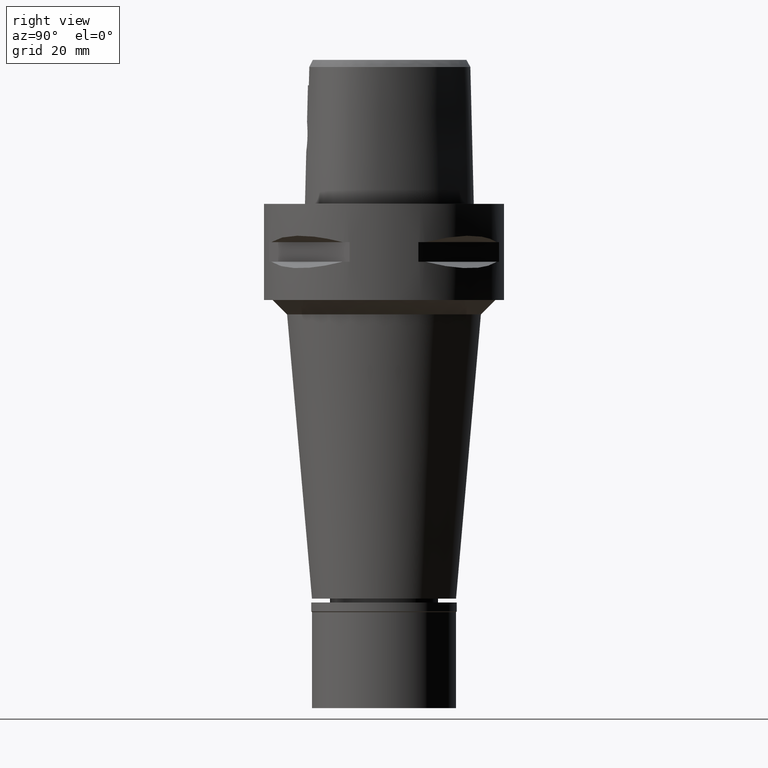
[diagram: clean part render]
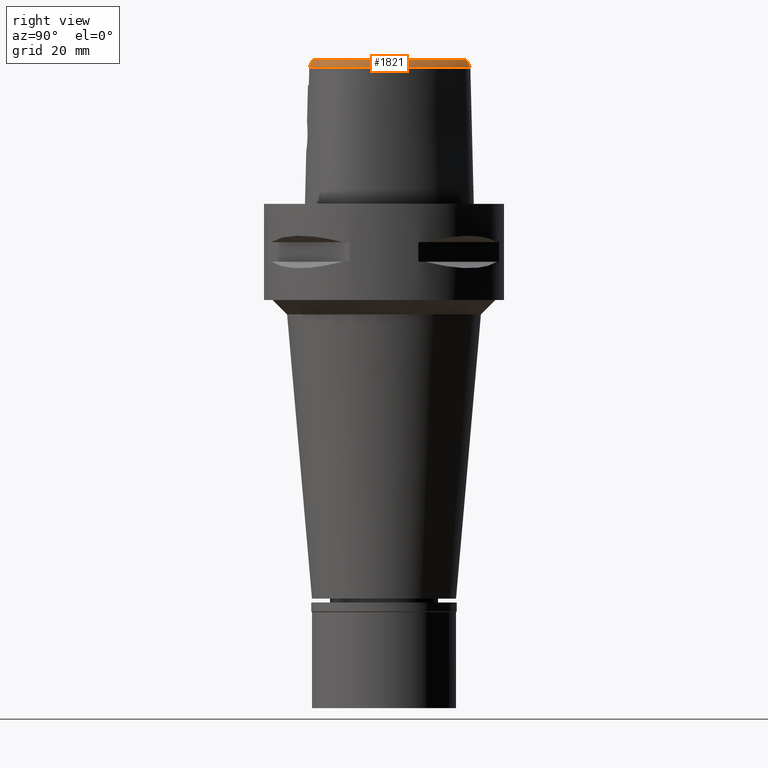
[diagram: same view with one face highlighted and labeled with its STEP entity id]
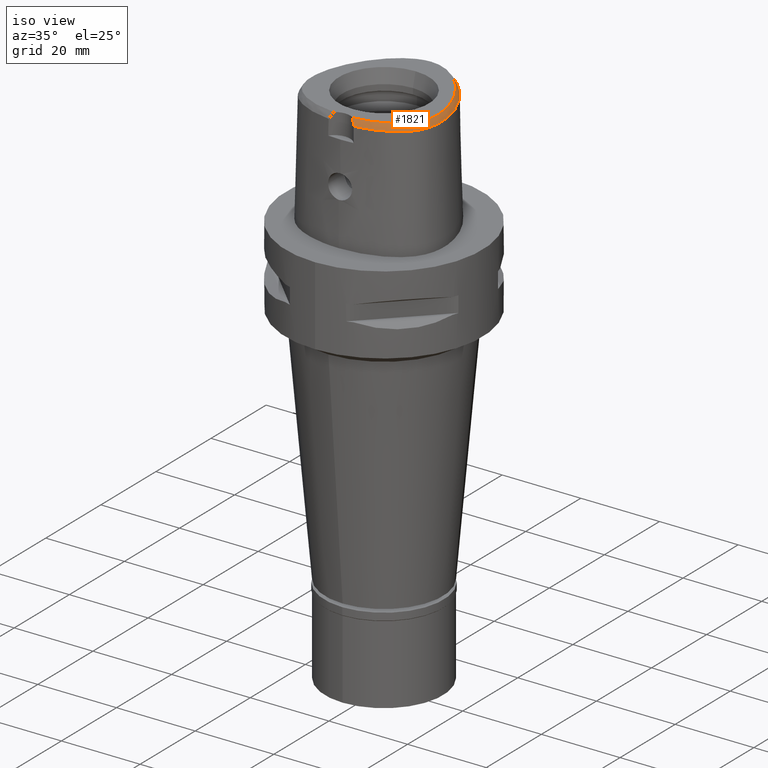
[diagram: same view with one face highlighted and labeled with its STEP entity id]
A machine part, right view. The second image highlights one B-rep face of the part: STEP entity #1821.
A second angle (iso view) of the same face is appended — the face is thin or edge-on in the first view.
In plain terms, the highlighted face is a freeform B-spline surface patch.
Its self-contained STEP definition (entity closure, byte-faithful):
#8 = CARTESIAN_POINT ( 'NONE',  ( 0.03829273897926999820, 17.07250974565999968, 30.15361985118000021 ) ) ;
#12 = CARTESIAN_POINT ( 'NONE',  ( 8.074596269521000735, -14.58215056251999897, 28.36704336540999805 ) ) ;
#17 = CARTESIAN_POINT ( 'NONE',  ( 7.523733068098778176, 15.26501041874221798, 28.52071728562186337 ) ) ;
#29 = CARTESIAN_POINT ( 'NONE',  ( 0.04269298065562000116, 18.07407459551999906, 28.36704040237999891 ) ) ;
#34 = CARTESIAN_POINT ( 'NONE',  ( 16.01658383235305649, -8.155509186612102113, 28.52071728562186337 ) ) ;
#56 = CARTESIAN_POINT ( 'NONE',  ( 1.288433840406999931, 17.98513789391999751, 28.36703984565999903 ) ) ;
#62 = CARTESIAN_POINT ( 'NONE',  ( 4.146164348675000610, -14.51264716611999894, 30.15361993093000237 ) ) ;
#66 = CARTESIAN_POINT ( 'NONE',  ( 16.47905536661404469, -6.962316254603452492, 28.52071728562186337 ) ) ;
#88 = CARTESIAN_POINT ( 'NONE',  ( 14.69095396796999964, -8.697738001636000860, 30.15361986478000134 ) ) ;
#112 = CARTESIAN_POINT ( 'NONE',  ( 13.58865818555999994, -11.07994916500000038, 28.96256661961000134 ) ) ;
#139 = CARTESIAN_POINT ( 'NONE',  ( 10.00264564467000028, -13.45200332874000004, 28.96256654724999891 ) ) ;
#164 = CARTESIAN_POINT ( 'NONE',  ( 16.27159029794999867, -6.690095881023000679, 28.96256664977999762 ) ) ;
#180 = CARTESIAN_POINT ( 'NONE',  ( 11.36765809995435106, -12.04801986072539322, 30.00000000000443379 ) ) ;
#185 = CARTESIAN_POINT ( 'NONE',  ( 16.13385724285000222, -8.081679272639998857, 28.36704050287999834 ) ) ;
#200 = CARTESIAN_POINT ( 'NONE',  ( 12.04928217776555499, -11.59002493207462514, 29.99999999999659295 ) ) ;
#207 = CARTESIAN_POINT ( 'NONE',  ( 10.21307750421000193, 11.18747849915999915, 30.15361992621000198 ) ) ;
#233 = CARTESIAN_POINT ( 'NONE',  ( 8.816245487877313991, -13.33426548781544341, 30.00000000000358824 ) ) ;
#240 = B_SPLINE_CURVE_WITH_KNOTS ( 'NONE', 3,
 ( #3615, #3139, #836, #3195 ),
 .UNSPECIFIED., .F., .F.,
 ( 4, 4 ),
 ( 0.0000000000000000000, 1.000000000000000000 ),
 .UNSPECIFIED. ) ;
#241 = CARTESIAN_POINT ( 'NONE',  ( 11.04997149070000084, 10.13969074653999947, 30.15361980688999921 ) ) ;
#257 = CARTESIAN_POINT ( 'NONE',  ( 14.44767169633531623, -9.224476417586206622, 30.00000000000325073 ) ) ;
#262 = CARTESIAN_POINT ( 'NONE',  ( 14.93884240354999982, 2.841254453171000005, 30.15361987669999877 ) ) ;
#279 = CARTESIAN_POINT ( 'NONE',  ( 3.772905803808435543, 16.33508552419539583, 30.00000000000495604 ) ) ;
#286 = CARTESIAN_POINT ( 'NONE',  ( 16.61894492805000212, -1.593427088619999932, 28.96256635696000004 ) ) ;
#313 = CARTESIAN_POINT ( 'NONE',  ( 15.09769666617999917, 4.331286804772998877, 28.96256659679999856 ) ) ;
#361 = CARTESIAN_POINT ( 'NONE',  ( 2.660620297192000105, 17.69691652207000132, 28.36703993573999938 ) ) ;
#366 = CARTESIAN_POINT ( 'NONE',  ( 2.133238677200000044, -15.41175674047999955, 28.96256729753000059 ) ) ;
#391 = CARTESIAN_POINT ( 'NONE',  ( 7.415406934757000634, 15.24502578981999967, 28.36703950204999813 ) ) ;
#395 = CARTESIAN_POINT ( 'NONE',  ( 3.198993527212000032, -15.31209627237000070, 28.96256711084999935 ) ) ;
#414 = CARTESIAN_POINT ( 'NONE',  ( 0.04122623343016999786, 17.74021964556999720, 28.96256688530999668 ) ) ;
#418 = CARTESIAN_POINT ( 'NONE',  ( 5.498906399425999680, -14.59729486414999933, 29.55809360039999945 ) ) ;
#440 = CARTESIAN_POINT ( 'NONE',  ( 2.432451611997000107, -15.38739613301000020, 28.96256729110000094 ) ) ;
#442 = CARTESIAN_POINT ( 'NONE',  ( 3.168920890822999770, -15.55911073834000113, 28.52071374672999582 ) ) ;
#466 = CARTESIAN_POINT ( 'NONE',  ( 13.36082485258000041, -10.83589156907000017, 29.55809325507000196 ) ) ;
#493 = CARTESIAN_POINT ( 'NONE',  ( 15.26275743287999909, -8.361380631612998826, 29.55809319548999881 ) ) ;
#516 = CARTESIAN_POINT ( 'NONE',  ( 14.96605349954000097, -8.208212624780999889, 30.15361991123000251 ) ) ;
#541 = CARTESIAN_POINT ( 'NONE',  ( 15.19450060900999944, -9.754098530245000731, 28.36703999949999755 ) ) ;
#561 = CARTESIAN_POINT ( 'NONE',  ( 15.51702143705311876, -7.148634146069255735, 29.99999999999807798 ) ) ;
#566 = CARTESIAN_POINT ( 'NONE',  ( 16.59322732226999975, -6.779682745314000059, 28.36704003163999843 ) ) ;
#583 = CARTESIAN_POINT ( 'NONE',  ( 9.755668685253413130, -12.92551394022960487, 29.99999999999576517 ) ) ;
#588 = CARTESIAN_POINT ( 'NONE',  ( 13.30771710062999880, 6.596507657484000475, 30.15361984243000038 ) ) ;
#601 = CARTESIAN_POINT ( 'NONE',  ( 10.60500548643838847, -12.49469941439629039, 30.00000000000041922 ) ) ;
#608 = CARTESIAN_POINT ( 'NONE',  ( 16.70696973355000026, -3.542334225978999829, 28.96256686301999750 ) ) ;
#632 = CARTESIAN_POINT ( 'NONE',  ( 7.783816186093613254, -13.71424622167329055, 29.99999999999985079 ) ) ;
#638 = CARTESIAN_POINT ( 'NONE',  ( 11.31634565947000048, 10.34083897090999926, 29.55809349560999877 ) ) ;
#656 = CARTESIAN_POINT ( 'NONE',  ( 15.99982784345714215, -5.151471542954656258, 29.99999999999363354 ) ) ;
#663 = CARTESIAN_POINT ( 'NONE',  ( 17.04077293784999725, -3.547427324846000207, 28.36704036729999956 ) ) ;
#680 = VERTEX_POINT ( 'NONE', #1536 ) ;
#686 = CARTESIAN_POINT ( 'NONE',  ( 14.23542756936999965, 5.481940382237999287, 29.55809356491000273 ) ) ;
#701 = CARTESIAN_POINT ( 'NONE',  ( 2.406543924163999648, -14.80491841401999942, 30.00000000000000000 ) ) ;
#713 = CARTESIAN_POINT ( 'NONE',  ( 0.6333398079783000290, 18.05338774167999816, 28.36703990808999976 ) ) ;
#739 = CARTESIAN_POINT ( 'NONE',  ( 4.911849081090999825, 16.81501773219000029, 28.36704528371999956 ) ) ;
#762 = CARTESIAN_POINT ( 'NONE',  ( 1.893770431822999978, 17.54090481157000170, 28.96256691932000038 ) ) ;
#766 = CARTESIAN_POINT ( 'NONE',  ( 6.635374954968000338, -13.97470328023000086, 30.15361950303000071 ) ) ;
#789 = CARTESIAN_POINT ( 'NONE',  ( 5.383607481564999908, 15.79993209983999947, 29.55809503456000087 ) ) ;
#794 = CARTESIAN_POINT ( 'NONE',  ( 9.719097109493999298, -12.84755303811000005, 30.15361990123000169 ) ) ;
#811 = CARTESIAN_POINT ( 'NONE',  ( -0.5225041125593999913, 18.05388067451999845, 28.36703978223999911 ) ) ;
#818 = CARTESIAN_POINT ( 'NONE',  ( 15.84228676733495256, 3.460033425849442068, 28.52071728562186337 ) ) ;
#836 = CARTESIAN_POINT ( 'NONE',  ( 2.674237079526943450, -15.00654560858230013, 29.59847386639597389 ) ) ;
#866 = CARTESIAN_POINT ( 'NONE',  ( 15.91455695856999775, -5.139395369444000217, 30.15361986919999993 ) ) ;
#869 = CARTESIAN_POINT ( 'NONE',  ( 8.702202469522539729, -14.36510984286100445, 28.52071728562186337 ) ) ;
#891 = CARTESIAN_POINT ( 'NONE',  ( 11.67627172026999993, -12.54095468905999944, 28.96256710911999832 ) ) ;
#901 = CARTESIAN_POINT ( 'NONE',  ( -3.094715185645000153E-11, 17.98202997909999823, 28.52071728569000086 ) ) ;
#913 = CARTESIAN_POINT ( 'NONE',  ( 11.49911564024000121, -12.25799115100000058, 29.55809346357999701 ) ) ;
#939 = CARTESIAN_POINT ( 'NONE',  ( 14.92213845358999968, -9.560949848247998872, 28.96256662936000126 ) ) ;
#954 = CARTESIAN_POINT ( 'NONE',  ( 14.55828366953405251, 4.114142377746066614, 30.00000000000204636 ) ) ;
#957 = EDGE_CURVE ( 'NONE', #680, #4300, #3241, .T. ) ;
#959 = CARTESIAN_POINT ( 'NONE',  ( 14.53264266294000073, -10.07281538320000003, 28.96256704513000102 ) ) ;
#975 = CARTESIAN_POINT ( 'NONE',  ( 16.08569500455069701, -4.373922630229509778, 29.99999999999538502 ) ) ;
#980 = CARTESIAN_POINT ( 'NONE',  ( 16.27771148723000039, 1.905284438587999896, 28.36704366148000034 ) ) ;
#1006 = CARTESIAN_POINT ( 'NONE',  ( 12.89819495673000027, 7.998107932144000287, 29.55809329633999738 ) ) ;
#1034 = CARTESIAN_POINT ( 'NONE',  ( 4.499552315896580446, 15.99769543814335471, 30.00000000000355627 ) ) ;
#1040 = CARTESIAN_POINT ( 'NONE',  ( 15.60524121365999939, 0.4732284123241000118, 30.15361950183000062 ) ) ;
#1064 = CARTESIAN_POINT ( 'NONE',  ( 16.47571318443000266, -0.5198468750482999612, 28.96256739823000004 ) ) ;
#1087 = CARTESIAN_POINT ( 'NONE',  ( 16.99839952402999899, -4.444578169778999666, 28.36704113150000239 ) ) ;
#1092 = EDGE_CURVE ( 'NONE', #4385, #680, #1951, .T. ) ;
#1117 = CARTESIAN_POINT ( 'NONE',  ( 7.214031648776000338, 14.97878479705999943, 28.96256631331999998 ) ) ;
#1142 = CARTESIAN_POINT ( 'NONE',  ( 3.739030726366000312, 16.25590661124999770, 30.15361978697999845 ) ) ;
#1146 = CARTESIAN_POINT ( 'NONE',  ( 6.723598313492000322, -14.29663611875000129, 29.55809436971000181 ) ) ;
#1165 = CARTESIAN_POINT ( 'NONE',  ( 3.272113944088999915, 17.15368569437000090, 28.96256605981999854 ) ) ;
#1170 = CARTESIAN_POINT ( 'NONE',  ( 9.032089389451000372, -13.87424967966999922, 28.96256671041000175 ) ) ;
#1194 = CARTESIAN_POINT ( 'NONE',  ( -0.4851168773169999837, 17.38770201586000042, 29.55809320042000010 ) ) ;
#1217 = CARTESIAN_POINT ( 'NONE',  ( 4.198916023021000754, -14.84224513320000050, 29.55809313881999856 ) ) ;
#1240 = CARTESIAN_POINT ( 'NONE',  ( 16.06557059065000104, -7.342053841249000179, 28.96256687891999704 ) ) ;
#1267 = CARTESIAN_POINT ( 'NONE',  ( 12.58255321154000050, -12.33410881720999974, 28.36704093719000142 ) ) ;
#1271 = CARTESIAN_POINT ( 'NONE',  ( 1.893775678554993291, 17.84807068954962972, 28.52071728562186337 ) ) ;
#1273 = ORIENTED_EDGE ( 'NONE', *, *, #1092, .T. ) ;
#1290 = CARTESIAN_POINT ( 'NONE',  ( 15.43579399391000173, -7.119993162503999606, 30.15361985211999851 ) ) ;
#1312 = CARTESIAN_POINT ( 'NONE',  ( 12.38807379903000161, -12.06274774999999977, 28.96256722508000081 ) ) ;
#1333 = CARTESIAN_POINT ( 'NONE',  ( 10.27891984618265298, 11.24296481357911404, 29.99999999999505818 ) ) ;
#1339 = CARTESIAN_POINT ( 'NONE',  ( 16.24512016238000101, -5.186210159869999892, 29.55809331637000170 ) ) ;
#1362 = CARTESIAN_POINT ( 'NONE',  ( 9.358132912821000460, 12.14677139895999858, 30.15361970659999713 ) ) ;
#1386 = CARTESIAN_POINT ( 'NONE',  ( 8.497719873075999075, 13.01181088210000070, 30.15361963137000245 ) ) ;
#1405 = CARTESIAN_POINT ( 'NONE',  ( 3.130495111450597001, -14.73481892791950543, 30.00000000000001776 ) ) ;
#1409 = CARTESIAN_POINT ( 'NONE',  ( 15.88653426312000150, 3.164758789328999899, 28.36704013104000310 ) ) ;
#1433 = CARTESIAN_POINT ( 'NONE',  ( 15.68929135224448501, 0.4919393172824306215, 30.00000000000252243 ) ) ;
#1440 = CARTESIAN_POINT ( 'NONE',  ( 16.28694415644000060, -1.628263527791000254, 29.55809314318999981 ) ) ;
#1467 = CARTESIAN_POINT ( 'NONE',  ( 14.84060907517999972, 5.763743526879999912, 28.36704112913999865 ) ) ;
#1489 = B_SPLINE_CURVE_WITH_KNOTS ( 'NONE', 3,
 ( #2722, #3853, #1271, #1950, #17, #4252, #2025, #818, #3468, #1553, #4603, #66, #34, #2344, #3143, #1650, #4302, #1606, #869, #3872, #2000, #442 ),
 .UNSPECIFIED., .F., .F.,
 ( 4, 1, 1, 1, 1, 1, 1, 1, 1, 1, 1, 1, 1, 1, 1, 1, 1, 1, 1, 4 ),
 ( 0.0000000000000000000, 0.04404152929334107652, 0.08808305858551931933, 0.1761661171698760686, 0.2642491757542327901, 0.3523322343385895117, 0.4404152929230518709, 0.5284983515074086480, 0.5725398807995869532, 0.6165814100917652585, 0.6606229393839436748, 0.6826437040300328274, 0.7046644686762276732, 0.7266852333222112437, 0.7487059979683002853, 0.7927475272605843948, 0.8367890565527628111, 0.8808305858448354231, 0.9689136444292978378, 1.000000000000000000 ),
 .UNSPECIFIED. ) ;
#1493 = CARTESIAN_POINT ( 'NONE',  ( 8.077863231109999376, 14.28671554293000057, 28.96256706073000231 ) ) ;
#1497 = CARTESIAN_POINT ( 'NONE',  ( 3.159672803738999836, -14.98071688823999992, 29.55809346430999796 ) ) ;
#1520 = CARTESIAN_POINT ( 'NONE',  ( 3.870351682439999941, 16.56285352720999882, 29.55809355292999996 ) ) ;
#1526 = CARTESIAN_POINT ( 'NONE',  ( 3.238314250685999873, -15.64347565648999883, 28.36704075737999986 ) ) ;
#1536 = CARTESIAN_POINT ( 'NONE',  ( -6.301949014258999711E-11, 17.15328888647999861, 30.00000000000000000 ) ) ;
#1545 = CARTESIAN_POINT ( 'NONE',  ( -0.4664232596956999766, 17.05461268652000228, 30.15361990951000237 ) ) ;
#1553 = CARTESIAN_POINT ( 'NONE',  ( 16.99625257117350330, -3.273868232427241676, 28.52071728562186337 ) ) ;
#1572 = CARTESIAN_POINT ( 'NONE',  ( 6.185590305766999641, 15.29957098851000019, 29.55809434152000037 ) ) ;
#1576 = FACE_OUTER_BOUND ( 'NONE', #3871, .T. ) ;
#1599 = CARTESIAN_POINT ( 'NONE',  ( 1.149539320437000134, 16.99313337148999992, 30.15361990355000188 ) ) ;
#1606 = CARTESIAN_POINT ( 'NONE',  ( 11.33338046474217542, -13.08225241901945068, 28.52071728562186337 ) ) ;
#1625 = CARTESIAN_POINT ( 'NONE',  ( 14.97609025388000070, -8.871497591701999141, 29.55809332912000187 ) ) ;
#1646 = CARTESIAN_POINT ( 'NONE',  ( 14.08988870307999974, -10.57899395039999924, 28.96256666514999978 ) ) ;
#1650 = CARTESIAN_POINT ( 'NONE',  ( 14.26907046692866565, -10.79012245165629835, 28.52071728562186337 ) ) ;
#1676 = CARTESIAN_POINT ( 'NONE',  ( 11.85342780029000131, -12.82391822712000007, 28.36704075465999608 ) ) ;
#1702 = CARTESIAN_POINT ( 'NONE',  ( 10.88292455253000135, -13.00555004452999874, 28.96256665938999930 ) ) ;
#1725 = CARTESIAN_POINT ( 'NONE',  ( 16.11602470272999810, -5.920354283145999652, 29.55809323977999981 ) ) ;
#1740 = CARTESIAN_POINT ( 'NONE',  ( 4.159771979224683669, -14.59766906204223247, 30.00000000000003908 ) ) ;
#1747 = CARTESIAN_POINT ( 'NONE',  ( 10.97881561765999869, 11.83277732138000005, 28.36703960470000041 ) ) ;
#1767 = CARTESIAN_POINT ( 'NONE',  ( 0.1912597614439882354, 17.15328888648454608, 30.00000000000263967 ) ) ;
#1773 = CARTESIAN_POINT ( 'NONE',  ( 9.844565711376999317, 12.60401288847999979, 28.96256786168999753 ) ) ;
#1789 = CARTESIAN_POINT ( 'NONE',  ( 14.08238499151751455, -9.704590128438827179, 29.99999999999970512 ) ) ;
#1795 = CARTESIAN_POINT ( 'NONE',  ( 14.53801832227000013, 5.622841954558999156, 28.96256734701999846 ) ) ;
#1810 = CARTESIAN_POINT ( 'NONE',  ( 8.557117433367597670, 13.07415149353518125, 30.00000000000477840 ) ) ;
#1817 = CARTESIAN_POINT ( 'NONE',  ( 16.02670478070000115, -2.631400928679999751, 30.15361987967999724 ) ) ;
#1821 = ADVANCED_FACE ( 'NONE', ( #1576 ), #4914, .F. ) ;
#1823 = ORIENTED_EDGE ( 'NONE', *, *, #4113, .F. ) ;
#1843 = CARTESIAN_POINT ( 'NONE',  ( 15.31379854252999984, 1.633849005622999728, 30.15361954456999882 ) ) ;
#1868 = CARTESIAN_POINT ( 'NONE',  ( 2.570246398364000040, 17.37550306872999784, 28.96256658885999613 ) ) ;
#1871 = CARTESIAN_POINT ( 'NONE',  ( 2.372941993995000054, -14.72275823976000098, 30.15361979108999790 ) ) ;
#1890 = CARTESIAN_POINT ( 'NONE',  ( 0.5865513355022999864, 17.38722245533999811, 29.55809323447999759 ) ) ;
#1896 = CARTESIAN_POINT ( 'NONE',  ( 2.081129139329999767, -14.74651665534999978, 30.15361979013999871 ) ) ;
#1920 = CARTESIAN_POINT ( 'NONE',  ( 0.6099455717402999522, 17.72030509850999991, 28.96256657129000089 ) ) ;
#1925 = ORIENTED_EDGE ( 'NONE', *, *, #957, .T. ) ;
#1943 = CARTESIAN_POINT ( 'NONE',  ( 1.825090705659999868, 17.21415816036999757, 29.55809338273000009 ) ) ;
#1947 = CARTESIAN_POINT ( 'NONE',  ( 6.900045030540000290, -14.94050179579000037, 28.36704410305999957 ) ) ;
#1949 = VERTEX_POINT ( 'NONE', #2558 ) ;
#1950 = CARTESIAN_POINT ( 'NONE',  ( 4.422474504765952830, 17.08283549832817982, 28.52071728562186337 ) ) ;
#1951 = LINE ( 'NONE', #2323, #3334 ) ;
#1963 = CARTESIAN_POINT ( 'NONE',  ( 9.188505990322999750, 13.73682431209000043, 28.36704273895999862 ) ) ;
#1996 = CARTESIAN_POINT ( 'NONE',  ( 10.14441991225000095, -13.75422847404999871, 28.36703987026000107 ) ) ;
#2000 = CARTESIAN_POINT ( 'NONE',  ( 3.738627708318999598, -15.49270856215482084, 28.52071728562186692 ) ) ;
#2022 = CARTESIAN_POINT ( 'NONE',  ( 16.44286909410000064, -5.988493112676000152, 28.96256658371999748 ) ) ;
#2025 = CARTESIAN_POINT ( 'NONE',  ( 13.75951381385227990, 7.944084035686747924, 28.52071728562186337 ) ) ;
#2045 = CARTESIAN_POINT ( 'NONE',  ( 13.60276569123999835, -10.12223978861999996, 30.15361988377999936 ) ) ;
#2073 = CARTESIAN_POINT ( 'NONE',  ( 15.55946136620999987, -8.514548638444001227, 28.96256647974999865 ) ) ;
#2092 = CARTESIAN_POINT ( 'NONE',  ( 13.19176257967602339, -10.65479018523067190, 30.00000000000106226 ) ) ;
#2098 = CARTESIAN_POINT ( 'NONE',  ( 15.85616529954000242, -8.667716645276000165, 28.36703976399999760 ) ) ;
#2114 = CARTESIAN_POINT ( 'NONE',  ( 5.446614459517848950, -14.35518554872922969, 29.99999999999900524 ) ) ;
#2118 = CARTESIAN_POINT ( 'NONE',  ( 12.68524246373000075, 9.573345868179000462, 28.36704140125000251 ) ) ;
#2136 = CARTESIAN_POINT ( 'NONE',  ( 6.048015628560739820, 15.09357031580012354, 30.00000000000314770 ) ) ;
#2140 = CARTESIAN_POINT ( 'NONE',  ( 17.02717039219000128, -2.585965686315000234, 28.36704009936999782 ) ) ;
#2158 = CARTESIAN_POINT ( 'NONE',  ( 14.76450668990880999, -8.742560395150521302, 30.00000000000274625 ) ) ;
#2165 = CARTESIAN_POINT ( 'NONE',  ( 15.95640717232999961, 1.814805960932999840, 28.96256895583999835 ) ) ;
#2182 = CARTESIAN_POINT ( 'NONE',  ( 6.863227115065921424, 14.51498137220334073, 29.99999999999718270 ) ) ;
#2188 = CARTESIAN_POINT ( 'NONE',  ( 14.19195888437999997, 7.066445347588999226, 28.36704049537999950 ) ) ;
#2215 = CARTESIAN_POINT ( 'NONE',  ( 13.60246436187999919, 6.753153554185999496, 29.55809339341000097 ) ) ;
#2244 = CARTESIAN_POINT ( 'NONE',  ( -0.3196752500175999989, 17.39641317963000233, 29.55809329869999758 ) ) ;
#2266 = CARTESIAN_POINT ( 'NONE',  ( 3.049561240507999926, 16.52412750990999868, 30.15361997341000233 ) ) ;
#2269 = CARTESIAN_POINT ( 'NONE',  ( 1.945369977427999997, -15.09082728411999952, 29.55809353821000229 ) ) ;
#2290 = CARTESIAN_POINT ( 'NONE',  ( 4.611126830695999601, 16.21887674755999953, 29.55809468921999894 ) ) ;
#2295 = CARTESIAN_POINT ( 'NONE',  ( 7.756461196291000171, -13.63259855821000066, 30.15361957242999935 ) ) ;
#2317 = CARTESIAN_POINT ( 'NONE',  ( 1.242135667083000161, 17.65446971976999890, 28.96256653161999495 ) ) ;
#2320 = CARTESIAN_POINT ( 'NONE',  ( 9.860871377081000588, -13.14977818342999960, 29.55809322424000030 ) ) ;
#2323 = CARTESIAN_POINT ( 'NONE',  ( -3.094715185645000153E-11, 17.98202997909999823, 28.52071728569000086 ) ) ;
#2336 = CARTESIAN_POINT ( 'NONE',  ( 0.5631570992643000206, 17.05413981216999986, 30.15361989767999873 ) ) ;
#2344 = CARTESIAN_POINT ( 'NONE',  ( 15.58740368722602021, -8.999391713747405319, 28.52071728562186337 ) ) ;
#2362 = CARTESIAN_POINT ( 'NONE',  ( 4.251667697365999921, -15.17184310029000116, 28.96256634671999919 ) ) ;
#2388 = CARTESIAN_POINT ( 'NONE',  ( 13.23487809058000053, -11.83335342444000027, 28.36703997597999916 ) ) ;
#2414 = CARTESIAN_POINT ( 'NONE',  ( 14.33345020900999955, -10.80737103128999976, 28.36704005584000043 ) ) ;
#2438 = CARTESIAN_POINT ( 'NONE',  ( 14.01571224365999946, -9.650064484293999101, 30.15361982751000269 ) ) ;
#2462 = CARTESIAN_POINT ( 'NONE',  ( -6.301949014258999711E-11, 17.15328888647999861, 30.00000000000000000 ) ) ;
#2469 = CARTESIAN_POINT ( 'NONE',  ( 15.75068229228000050, -7.231023501876000736, 29.55809336552000133 ) ) ;
#2487 = CARTESIAN_POINT ( 'NONE',  ( 15.04259016984626740, -8.247723288183502532, 29.99999999999995026 ) ) ;
#2491 = CARTESIAN_POINT ( 'NONE',  ( 16.33268836591999928, -4.393043220563000339, 29.55809356554999923 ) ) ;
#2507 = CARTESIAN_POINT ( 'NONE',  ( 12.65514534657125267, -11.12483370674451422, 30.00000000000234834 ) ) ;
#2512 = CARTESIAN_POINT ( 'NONE',  ( 13.18428203037999857, 8.170061246699001245, 28.96256671649000225 ) ) ;
#2530 = CARTESIAN_POINT ( 'NONE',  ( 11.11868440496376031, 10.19157821280299459, 29.99999999999320366 ) ) ;
#2537 = CARTESIAN_POINT ( 'NONE',  ( 16.03936332497000095, -3.532148028246000049, 30.15361985447999871 ) ) ;
#2557 = CARTESIAN_POINT ( 'NONE',  ( 5.258649622039831328, 15.58603480842768541, 29.99999999999665690 ) ) ;
#2558 = CARTESIAN_POINT ( 'NONE',  ( 3.168920890822999770, -15.55911073834000113, 28.52071374672999582 ) ) ;
#2562 = CARTESIAN_POINT ( 'NONE',  ( 16.14629499794000012, -0.5738484262235999944, 29.55809358671999831 ) ) ;
#2585 = CARTESIAN_POINT ( 'NONE',  ( 15.25473969007999919, 2.949089231889999940, 29.55809329481999725 ) ) ;
#2614 = CARTESIAN_POINT ( 'NONE',  ( 6.000190590602000107, 15.02195837243999854, 30.15361951283999886 ) ) ;
#2639 = CARTESIAN_POINT ( 'NONE',  ( 4.460765705497999889, 15.92080625523999871, 30.15361939197000041 ) ) ;
#2664 = CARTESIAN_POINT ( 'NONE',  ( 2.479872499535999975, 17.05408961539000146, 29.55809324196999910 ) ) ;
#2667 = CARTESIAN_POINT ( 'NONE',  ( 1.969406724389000107, -15.42359309477000018, 28.96256728431999861 ) ) ;
#2688 = CARTESIAN_POINT ( 'NONE',  ( 7.645193976424000226, 13.77826679115000097, 30.15361982519999984 ) ) ;
#2692 = CARTESIAN_POINT ( 'NONE',  ( 9.155992085197999231, -14.18422136080000051, 28.36704012706999833 ) ) ;
#2716 = CARTESIAN_POINT ( 'NONE',  ( 1.195837493759999814, 17.32380154562999763, 29.55809321758999886 ) ) ;
#2722 = CARTESIAN_POINT ( 'NONE',  ( -3.094715185645000153E-11, 17.98202997909999823, 28.52071728569000086 ) ) ;
#2764 = CARTESIAN_POINT ( 'NONE',  ( 13.13299151960000088, -10.59183397314000175, 30.15361989052000169 ) ) ;
#2794 = CARTESIAN_POINT ( 'NONE',  ( 16.90624656998999953, -5.279839740723000219, 28.36704021070999815 ) ) ;
#2816 = CARTESIAN_POINT ( 'NONE',  ( 10.56385210029000099, -12.41905425070999947, 30.15361988463000031 ) ) ;
#2837 = CARTESIAN_POINT ( 'NONE',  ( 14.37741414275999929, -9.174652484254000484, 30.15361988908000157 ) ) ;
#2863 = CARTESIAN_POINT ( 'NONE',  ( 15.99983278685999899, -4.367275745955000232, 30.15361978257999809 ) ) ;
#2882 = CARTESIAN_POINT ( 'NONE',  ( 12.68590586676745957, 7.870511070825999766, 30.00000000000601474 ) ) ;
#2887 = CARTESIAN_POINT ( 'NONE',  ( 13.89721162312999958, 6.909799450887000205, 28.96256694440000246 ) ) ;
#2903 = CARTESIAN_POINT ( 'NONE',  ( 3.078265684544157832, 16.60532678263340145, 29.99999999999936406 ) ) ;
#2908 = CARTESIAN_POINT ( 'NONE',  ( 16.95094569966000009, -1.558590649448999832, 28.36703957074000115 ) ) ;
#2930 = CARTESIAN_POINT ( 'NONE',  ( 2.406543924163999648, -14.80491841401999942, 30.00000000000000000 ) ) ;
#2935 = CARTESIAN_POINT ( 'NONE',  ( 11.84909399700999977, 10.74313541963000063, 28.36704087305999877 ) ) ;
#2962 = CARTESIAN_POINT ( 'NONE',  ( 16.80513137092000164, -0.4658453238731000146, 28.36704120973000087 ) ) ;
#2987 = CARTESIAN_POINT ( 'NONE',  ( 16.58273369991999857, 0.6908338715863998614, 28.36704411590999797 ) ) ;
#3010 = CARTESIAN_POINT ( 'NONE',  ( 4.132993594588000086, 17.17674735914000195, 28.36704108482999942 ) ) ;
#3039 = CARTESIAN_POINT ( 'NONE',  ( 6.370990020930999975, 15.57718360458000006, 28.96256917020999921 ) ) ;
#3043 = CARTESIAN_POINT ( 'NONE',  ( 2.402696802996000081, -15.05507718638000014, 29.55809354109999987 ) ) ;
#3063 = CARTESIAN_POINT ( 'NONE',  ( 8.958243951240000058, 13.49515316875999993, 28.96256836976000315 ) ) ;
#3068 = CARTESIAN_POINT ( 'NONE',  ( 8.784283997958000967, -13.25430631742000109, 30.15361987707999702 ) ) ;
#3078 = EDGE_CURVE ( 'NONE', #1949, #4300, #240, .T. ) ;
#3089 = CARTESIAN_POINT ( 'NONE',  ( 1.756410979495999891, 16.88741150917000411, 30.15361984613999979 ) ) ;
#3114 = CARTESIAN_POINT ( 'NONE',  ( 4.001672638514000013, 16.86980044318000083, 28.96256731888000147 ) ) ;
#3117 = CARTESIAN_POINT ( 'NONE',  ( 2.159293446134999961, -15.74437678305000077, 28.36704105123000019 ) ) ;
#3139 = CARTESIAN_POINT ( 'NONE',  ( 2.935843368165670153, -15.25651436809868500, 29.10537844863930701 ) ) ;
#3140 = CARTESIAN_POINT ( 'NONE',  ( 15.54636282569999928, -9.219016771833999258, 28.36704025779999938 ) ) ;
#3143 = CARTESIAN_POINT ( 'NONE',  ( 15.07117004567531815, -9.793013887526639039, 28.52071728562186337 ) ) ;
#3164 = CARTESIAN_POINT ( 'NONE',  ( 16.57568336618000160, -5.233024950297000544, 28.96256676353999993 ) ) ;
#3195 = CARTESIAN_POINT ( 'NONE',  ( 2.406543924163999648, -14.80491841401999942, 30.00000000000000000 ) ) ;
#3196 = CARTESIAN_POINT ( 'NONE',  ( 12.81203088408999946, -11.31657118905999937, 29.55809325286000089 ) ) ;
#3217 = CARTESIAN_POINT ( 'NONE',  ( 11.04246077865000153, -13.29879794144000016, 28.36704004677000057 ) ) ;
#3240 = CARTESIAN_POINT ( 'NONE',  ( 13.81649151854000124, -11.32400676093999969, 28.36703998414999717 ) ) ;
#3241 = B_SPLINE_CURVE_WITH_KNOTS ( 'NONE', 3,
 ( #2462, #1767, #3329, #3708, #4864, #4791, #2903, #279, #1034, #2557, #2136, #2182, #4766, #1810, #3685, #1333, #2530, #3657, #2882, #4414, #4396, #954, #4370, #4015, #1433, #4463, #4060, #4086, #3993, #975, #656, #3283, #4034, #561, #4814, #2487, #2158, #257, #1789, #4438, #2092, #2507, #200, #180, #601, #583, #233, #632, #3304, #2114, #1740, #1405, #4835, #2930 ),
 .UNSPECIFIED., .F., .F.,
 ( 4, 1, 1, 1, 1, 1, 1, 1, 1, 1, 1, 1, 1, 1, 1, 1, 1, 1, 1, 1, 1, 1, 1, 1, 1, 1, 1, 1, 1, 1, 1, 1, 1, 1, 1, 1, 1, 1, 1, 1, 1, 1, 1, 1, 1, 1, 1, 1, 1, 1, 1, 4 ),
 ( 0.0000000000000000000, 0.01988587058640001182, 0.03977174117009996124, 0.05965761175399997285, 0.07954348233780006439, 0.09942935292160004490, 0.1193152235055000565, 0.1392010940893000370, 0.1590869646731999376, 0.1789728352568999981, 0.1988587058408000097, 0.2187445764247000213, 0.2386304470083999707, 0.2585163175922999823, 0.2784021881761000738, 0.2982880587598999433, 0.3181739293438000660, 0.3380597999276000465, 0.3579456705113999160, 0.3778315410952000075, 0.3977174116791000191, 0.4176032822630000307, 0.4374891528466999802, 0.4573750234305999918, 0.4772608940143999723, 0.4971467645981999528, 0.5170326351820999644, 0.5369185057659000559, 0.5568043763497000365, 0.5766902469335999371, 0.5965761175174000286, 0.6164619881012000091, 0.6363478586849999896, 0.6562337292689000012, 0.6761195998528000128, 0.6960054704364999623, 0.7158913410203999739, 0.7357772116042000654, 0.7556630821880000459, 0.7755489527718999465, 0.7954348233557000381, 0.8153206939395000186, 0.8352065645232999991, 0.8550924351072000107, 0.8749783056909999912, 0.8948641762747999717, 0.9147500468586799993, 0.9346359174424899718, 0.9545217880263200394, 0.9744076586101599879, 0.9942935291939859477, 1.000000000000000000 ),
 .UNSPECIFIED. ) ;
#3266 = CARTESIAN_POINT ( 'NONE',  ( 12.13195561865000016, 9.199808746281000538, 29.55809363855000171 ) ) ;
#3283 = CARTESIAN_POINT ( 'NONE',  ( 15.87349190488088269, -5.869792298898524052, 29.99999999999715783 ) ) ;
#3288 = CARTESIAN_POINT ( 'NONE',  ( 10.08778211066000097, 12.83263363324000039, 28.36704193923000261 ) ) ;
#3304 = CARTESIAN_POINT ( 'NONE',  ( 6.658132732489419503, -14.05774790739508440, 29.99999999999528200 ) ) ;
#3308 = CARTESIAN_POINT ( 'NONE',  ( 8.727981912157998678, 13.25348202543000120, 29.55809400056000058 ) ) ;
#3329 = CARTESIAN_POINT ( 'NONE',  ( 0.5691917915717104037, 17.14006060249568719, 30.00000000000319034 ) ) ;
#3334 = VECTOR ( 'NONE', #4230, 1000.000000000000000 ) ;
#3336 = CARTESIAN_POINT ( 'NONE',  ( 16.69368185503000035, -2.601110767103000043, 28.96256669281000029 ) ) ;
#3367 = CARTESIAN_POINT ( 'NONE',  ( 14.47840907994000048, 4.081988310085000293, 30.15361989390000019 ) ) ;
#3394 = CARTESIAN_POINT ( 'NONE',  ( 4.304419371712000064, -15.50144106736999916, 28.36703955460999893 ) ) ;
#3413 = CARTESIAN_POINT ( 'NONE',  ( 0.03975948620472000150, 17.40636469560999799, 29.55809336824000155 ) ) ;
#3418 = CARTESIAN_POINT ( 'NONE',  ( 2.107183908265000127, -15.07913669791999922, 29.55809354384000187 ) ) ;
#3439 = CARTESIAN_POINT ( 'NONE',  ( -0.3447355757059999970, 18.06332007809999851, 28.36704014540999808 ) ) ;
#3445 = CARTESIAN_POINT ( 'NONE',  ( 7.862506220701001247, -13.94911589298000010, 29.55809417009000128 ) ) ;
#3462 = CARTESIAN_POINT ( 'NONE',  ( 3.383390295880000398, 17.46846478659999846, 28.36703910303000242 ) ) ;
#3468 = CARTESIAN_POINT ( 'NONE',  ( 16.79165444019831099, -0.3537785292840804341, 28.52071728562186337 ) ) ;
#3485 = CARTESIAN_POINT ( 'NONE',  ( 5.552004399037000937, 16.08818643348000421, 28.96257079721999972 ) ) ;
#3518 = CARTESIAN_POINT ( 'NONE',  ( 11.32195956021000072, -11.97502761293999995, 30.15361981803999925 ) ) ;
#3542 = CARTESIAN_POINT ( 'NONE',  ( 11.99911497401999938, -11.52002561557999982, 30.15361980085999960 ) ) ;
#3568 = CARTESIAN_POINT ( 'NONE',  ( 15.62831624931000007, -6.510922152440999255, 30.15361988605999954 ) ) ;
#3594 = CARTESIAN_POINT ( 'NONE',  ( 15.94995327362999937, -6.600509016732000411, 29.55809326792000036 ) ) ;
#3615 = CARTESIAN_POINT ( 'NONE',  ( 3.168920890822999770, -15.55911073834000113, 28.52071374672999582 ) ) ;
#3616 = CARTESIAN_POINT ( 'NONE',  ( 15.21415252737000046, -7.684797480557000071, 30.15361984171999765 ) ) ;
#3636 = CARTESIAN_POINT ( 'NONE',  ( 11.58271982824000013, 10.54198719526999817, 28.96256718433999922 ) ) ;
#3657 = CARTESIAN_POINT ( 'NONE',  ( 11.92667412982301833, 9.061218325782743221, 29.99999999999312905 ) ) ;
#3664 = CARTESIAN_POINT ( 'NONE',  ( 15.81687681145000113, -0.6278499773987999966, 30.15361977521999748 ) ) ;
#3685 = CARTESIAN_POINT ( 'NONE',  ( 9.420872132874885452, 12.20574557692233597, 30.00000000000179767 ) ) ;
#3691 = CARTESIAN_POINT ( 'NONE',  ( 15.63510285743000061, 1.724327483278000006, 29.55809425020999726 ) ) ;
#3708 = CARTESIAN_POINT ( 'NONE',  ( 1.161482229273851807, 17.07843133414289483, 30.00000000000169109 ) ) ;
#3714 = CARTESIAN_POINT ( 'NONE',  ( 9.601349312098999889, 12.37539214372000096, 29.55809378413999866 ) ) ;
#3742 = CARTESIAN_POINT ( 'NONE',  ( 12.40859904118999779, 9.386577307230000500, 28.96256751989999856 ) ) ;
#3792 = CARTESIAN_POINT ( 'NONE',  ( 3.160837592297999876, 16.83890660213999979, 29.55809301662000266 ) ) ;
#3795 = CARTESIAN_POINT ( 'NONE',  ( 1.993443471349999996, -15.75635890542999995, 28.36704103042999847 ) ) ;
#3820 = CARTESIAN_POINT ( 'NONE',  ( 7.012656362795000931, 14.71254380429999919, 29.55809312459999916 ) ) ;
#3826 = CARTESIAN_POINT ( 'NONE',  ( 7.968551245110999659, -14.26563322775000131, 28.96256876774999967 ) ) ;
#3847 = CARTESIAN_POINT ( 'NONE',  ( 2.389498600708000353, 16.73267616205000152, 30.15361989507999851 ) ) ;
#3853 = CARTESIAN_POINT ( 'NONE',  ( 0.6295828025428494845, 17.98202997637701017, 28.52071728562186337 ) ) ;
#3869 = CARTESIAN_POINT ( 'NONE',  ( 1.921333230467999975, -14.75806147345999975, 30.15361979208999799 ) ) ;
#3871 = EDGE_LOOP ( 'NONE', ( #1823, #1273, #1925, #4664 ) ) ;
#3872 = CARTESIAN_POINT ( 'NONE',  ( 5.902447799197765299, -15.16907841529602763, 28.52071728562186337 ) ) ;
#3896 = CARTESIAN_POINT ( 'NONE',  ( 3.120352080264999994, -14.64933750412000002, 30.15361981778000100 ) ) ;
#3924 = CARTESIAN_POINT ( 'NONE',  ( 12.60060728085000115, -11.05818007138000070, 30.15361989128999909 ) ) ;
#3947 = CARTESIAN_POINT ( 'NONE',  ( 15.26122653978999999, -9.045257181768000976, 28.96256679346000240 ) ) ;
#3972 = CARTESIAN_POINT ( 'NONE',  ( 14.79110787257000048, -10.28419083264999934, 28.36704065395000285 ) ) ;
#3993 = CARTESIAN_POINT ( 'NONE',  ( 16.12546998862759651, -3.533461825553732005, 30.00000000000294165 ) ) ;
#3999 = CARTESIAN_POINT ( 'NONE',  ( 16.38045888902000158, -7.453084180621999622, 28.36704039231999985 ) ) ;
#4015 = CARTESIAN_POINT ( 'NONE',  ( 15.39668103802213395, 1.657188505494671116, 29.99999999999377565 ) ) ;
#4020 = CARTESIAN_POINT ( 'NONE',  ( 14.78805287305999983, 4.206637557428999585, 29.55809324535000115 ) ) ;
#4034 = CARTESIAN_POINT ( 'NONE',  ( 15.71128456931716499, -6.534031654963753155, 30.00000000000649791 ) ) ;
#4038 = CARTESIAN_POINT ( 'NONE',  ( 10.72356957984000125, 11.61767771397000004, 28.96256637854000004 ) ) ;
#4060 = CARTESIAN_POINT ( 'NONE',  ( 16.04058509949204847, -1.654113685487843322, 29.99999999999898392 ) ) ;
#4067 = CARTESIAN_POINT ( 'NONE',  ( 16.25690287117000210, 0.6182987184990000884, 28.96256924455000004 ) ) ;
#4086 = CARTESIAN_POINT ( 'NONE',  ( 16.11273027396860158, -2.627494158580952810, 29.99999999999823075 ) ) ;
#4091 = CARTESIAN_POINT ( 'NONE',  ( 15.93107204240999941, 0.5457635654115999824, 29.55809437318999855 ) ) ;
#4113 = EDGE_CURVE ( 'NONE', #4385, #1949, #1489, .T. ) ;
#4114 = CARTESIAN_POINT ( 'NONE',  ( 13.93283681645999827, 5.341038809917999508, 30.15361978279999633 ) ) ;
#4145 = CARTESIAN_POINT ( 'NONE',  ( 6.811281076813000546, 14.44630281154000073, 30.15361993587000100 ) ) ;
#4170 = CARTESIAN_POINT ( 'NONE',  ( 7.861528603767001577, 14.03249116704000166, 29.55809344296999797 ) ) ;
#4191 = CARTESIAN_POINT ( 'NONE',  ( 6.556389736095000309, 15.85479622065000171, 28.36704399889999806 ) ) ;
#4195 = CARTESIAN_POINT ( 'NONE',  ( 6.811821672016000306, -14.61856895727000172, 28.96256923638999936 ) ) ;
#4219 = CARTESIAN_POINT ( 'NONE',  ( -0.3322054128617999980, 17.72986662886999909, 28.96256672206000005 ) ) ;
#4230 = DIRECTION ( 'NONE',  ( -1.891493992830029568E-11, -0.4887572537803078765, 0.8724198226067148010 ) ) ;
#4246 = CARTESIAN_POINT ( 'NONE',  ( -0.5038104949382000708, 17.72079134519000121, 28.96256649133000138 ) ) ;
#4252 = CARTESIAN_POINT ( 'NONE',  ( 10.91764517733003359, 11.98972036053594081, 28.52071728562186337 ) ) ;
#4299 = CARTESIAN_POINT ( 'NONE',  ( 13.84632719716000082, -10.35061686951000048, 29.55809327445999912 ) ) ;
#4300 = VERTEX_POINT ( 'NONE', #701 ) ;
#4302 = CARTESIAN_POINT ( 'NONE',  ( 13.06460231238480851, -11.91950040983220305, 28.52071728562186337 ) ) ;
#4327 = CARTESIAN_POINT ( 'NONE',  ( 15.78918031136000089, -5.852215453617000129, 30.15361989583000124 ) ) ;
#4351 = CARTESIAN_POINT ( 'NONE',  ( 13.02345448734000044, -11.57496230674999893, 28.96256661441999825 ) ) ;
#4370 = CARTESIAN_POINT ( 'NONE',  ( 15.02033012161840020, 2.869071121502582145, 29.99999999999977618 ) ) ;
#4377 = CARTESIAN_POINT ( 'NONE',  ( 14.64977629816999816, -9.367801166250998790, 29.55809325922000141 ) ) ;
#4385 = VERTEX_POINT ( 'NONE', #901 ) ;
#4396 = CARTESIAN_POINT ( 'NONE',  ( 14.01089202938723055, 5.377385268372155025, 29.99999999999354117 ) ) ;
#4401 = CARTESIAN_POINT ( 'NONE',  ( 15.52072076587000105, -7.817091411251999133, 29.55809339544000025 ) ) ;
#4414 = CARTESIAN_POINT ( 'NONE',  ( 13.38374903490226586, 6.636915464740803294, 30.00000000000228795 ) ) ;
#4420 = CARTESIAN_POINT ( 'NONE',  ( 16.66554394497000047, -4.418810695171000447, 28.96256734852000037 ) ) ;
#4438 = CARTESIAN_POINT ( 'NONE',  ( 13.66559393375132991, -10.18115111193436029, 30.00000000000189360 ) ) ;
#4444 = CARTESIAN_POINT ( 'NONE',  ( 12.61210788307000108, 7.826154617590000306, 30.15361987617999873 ) ) ;
#4463 = CARTESIAN_POINT ( 'NONE',  ( 15.90185233182321234, -0.6139199331563485185, 29.99999999999507949 ) ) ;
#4472 = CARTESIAN_POINT ( 'NONE',  ( 10.46832354202999937, 11.40257810656000004, 29.55809315237999968 ) ) ;
#4498 = CARTESIAN_POINT ( 'NONE',  ( 16.36019331786999942, -2.616255847891999942, 29.55809328624000187 ) ) ;
#4521 = CARTESIAN_POINT ( 'NONE',  ( 15.57063697659999946, 3.056924010609999964, 28.96256671293000196 ) ) ;
#4549 = CARTESIAN_POINT ( 'NONE',  ( -0.3071450871733999999, 17.06295973039999936, 30.15361987534999955 ) ) ;
#4554 = CARTESIAN_POINT ( 'NONE',  ( 5.639846737595000548, -15.24984225192999965, 28.36704126025999528 ) ) ;
#4574 = CARTESIAN_POINT ( 'NONE',  ( 5.215210564094000745, 15.51167776620999916, 30.15361927190999580 ) ) ;
#4578 = CARTESIAN_POINT ( 'NONE',  ( 5.428436230342000179, -14.27102117026000094, 30.15361977047000153 ) ) ;
#4596 = CARTESIAN_POINT ( 'NONE',  ( 1.962450157986999955, 17.86765146277000227, 28.36704045591000067 ) ) ;
#4599 = CARTESIAN_POINT ( 'NONE',  ( 8.908186693704999826, -13.56427799854999883, 29.55809329373999716 ) ) ;
#4603 = CARTESIAN_POINT ( 'NONE',  ( 16.85489147434762458, -5.354527548487159727, 28.52071728562186337 ) ) ;
#4621 = CARTESIAN_POINT ( 'NONE',  ( 8.294197858453001615, 14.54093991881999948, 28.36704067848999955 ) ) ;
#4664 = ORIENTED_EDGE ( 'NONE', *, *, #3078, .F. ) ;
#4673 = CARTESIAN_POINT ( 'NONE',  ( 15.82728900435999897, -7.949385341946000771, 28.96256694915999930 ) ) ;
#4700 = CARTESIAN_POINT ( 'NONE',  ( 10.72338832640999939, -12.71230214761999910, 29.55809327200999803 ) ) ;
#4725 = CARTESIAN_POINT ( 'NONE',  ( 14.27417745329999832, -9.861439933746998676, 29.55809343631999653 ) ) ;
#4748 = CARTESIAN_POINT ( 'NONE',  ( 12.19359438652000094, -11.79138668278999980, 29.55809351297000021 ) ) ;
#4766 = CARTESIAN_POINT ( 'NONE',  ( 7.700998872107177817, 13.84384558891763106, 30.00000000000076739 ) ) ;
#4771 = CARTESIAN_POINT ( 'NONE',  ( 16.76971348546999963, -6.056631942206000652, 28.36703992765999871 ) ) ;
#4791 = CARTESIAN_POINT ( 'NONE',  ( 2.412811123804833535, 16.81558681049820336, 30.00000000000575895 ) ) ;
#4799 = CARTESIAN_POINT ( 'NONE',  ( 16.37316652925999705, -3.537241127112999983, 29.55809335875000343 ) ) ;
#4814 = CARTESIAN_POINT ( 'NONE',  ( 15.29323375805109997, -7.718923543003036514, 29.99999999999888090 ) ) ;
#4820 = CARTESIAN_POINT ( 'NONE',  ( 11.85531219610999898, 9.013040185330998710, 30.15361975720000132 ) ) ;
#4835 = CARTESIAN_POINT ( 'NONE',  ( 2.538962679605597739, -14.79292722369919311, 30.00000000000231282 ) ) ;
#4842 = CARTESIAN_POINT ( 'NONE',  ( 13.47036910403000043, 8.342014561254000427, 28.36704013665000090 ) ) ;
#4864 = CARTESIAN_POINT ( 'NONE',  ( 1.774127352511263522, 16.97169788999119788, 30.00000000000009237 ) ) ;
#4873 = CARTESIAN_POINT ( 'NONE',  ( 15.95494338483000085, -1.663099966961999909, 30.15361992940999869 ) ) ;
#4899 = CARTESIAN_POINT ( 'NONE',  ( 15.40734045929999851, 4.455936052117000834, 28.36703994824999953 ) ) ;
#4914 = B_SPLINE_SURFACE_WITH_KNOTS ( 'NONE', 3, 3, ( 
 ( #3869, #2269, #2667, #3795 ),
 ( #1896, #3418, #366, #3117 ),
 ( #1871, #3043, #440, #4953 ),
 ( #3896, #1497, #395, #1526 ),
 ( #62, #1217, #2362, #3394 ),
 ( #4578, #418, #4925, #4554 ),
 ( #766, #1146, #4195, #1947 ),
 ( #2295, #3445, #3826, #12 ),
 ( #3068, #4599, #1170, #2692 ),
 ( #794, #2320, #139, #1996 ),
 ( #2816, #4700, #1702, #3217 ),
 ( #3518, #913, #891, #1676 ),
 ( #3542, #4748, #1312, #1267 ),
 ( #3924, #3196, #4351, #2388 ),
 ( #2764, #466, #112, #3240 ),
 ( #2045, #4299, #1646, #2414 ),
 ( #2438, #4725, #959, #3972 ),
 ( #2837, #4377, #939, #541 ),
 ( #88, #1625, #3947, #3140 ),
 ( #516, #493, #2073, #2098 ),
 ( #3616, #4401, #4673, #185 ),
 ( #1290, #2469, #1240, #3999 ),
 ( #3568, #3594, #164, #566 ),
 ( #4327, #1725, #2022, #4771 ),
 ( #866, #1339, #3164, #2794 ),
 ( #2863, #2491, #4420, #1087 ),
 ( #2537, #4799, #608, #663 ),
 ( #1817, #4498, #3336, #2140 ),
 ( #4873, #1440, #286, #2908 ),
 ( #3664, #2562, #1064, #2962 ),
 ( #1040, #4091, #4067, #2987 ),
 ( #1843, #3691, #2165, #980 ),
 ( #262, #2585, #4521, #1409 ),
 ( #3367, #4020, #313, #4899 ),
 ( #4114, #686, #1795, #1467 ),
 ( #588, #2215, #2887, #2188 ),
 ( #4444, #1006, #2512, #4842 ),
 ( #4820, #3266, #3742, #2118 ),
 ( #241, #638, #3636, #2935 ),
 ( #207, #4472, #4038, #1747 ),
 ( #1362, #3714, #1773, #3288 ),
 ( #1386, #3308, #3063, #1963 ),
 ( #2688, #4170, #1493, #4621 ),
 ( #4145, #3820, #1117, #391 ),
 ( #2614, #1572, #3039, #4191 ),
 ( #4574, #789, #3485, #4949 ),
 ( #2639, #2290, #4922, #739 ),
 ( #1142, #1520, #3114, #3010 ),
 ( #2266, #3792, #1165, #3462 ),
 ( #3847, #2664, #1868, #361 ),
 ( #3089, #1943, #762, #4596 ),
 ( #1599, #2716, #2317, #56 ),
 ( #2336, #1890, #1920, #713 ),
 ( #8, #3413, #414, #29 ),
 ( #4549, #2244, #4219, #3439 ),
 ( #1545, #1194, #4246, #811 ) ),
 .UNSPECIFIED., .F., .F., .F.,
 ( 4, 1, 1, 1, 1, 1, 1, 1, 1, 1, 1, 1, 1, 1, 1, 1, 1, 1, 1, 1, 1, 1, 1, 1, 1, 1, 1, 1, 1, 1, 1, 1, 1, 1, 1, 1, 1, 1, 1, 1, 1, 1, 1, 1, 1, 1, 1, 1, 1, 1, 1, 1, 1, 4 ),
 ( 4, 4 ),
 ( -0.006850724150829000207, 0.0000000000000000000, 0.005706470806014000280, 0.02559234138984000165, 0.04547821197368000223, 0.06536408255751000040, 0.08524995314132000068, 0.1051358237252000005, 0.1250216943090000088, 0.1449075648927999893, 0.1647934354767000009, 0.1846793060604999814, 0.2045651766443000175, 0.2244510472280999980, 0.2443369178119999818, 0.2642227883957999901, 0.2841086589796000261, 0.3039945295635000377, 0.3238804001471999872, 0.3437662707310999988, 0.3636521413150000104, 0.3835380118987999909, 0.4034238824826000269, 0.4233097530664000074, 0.4431956236502999635, 0.4630814942340999996, 0.4829673648179000356, 0.5028532354018000472, 0.5227391059856000277, 0.5426249765694000082, 0.5625108471533000198, 0.5823967177369999693, 0.6022825883208999809, 0.6221684589047999925, 0.6420543294886000840, 0.6619402000723999535, 0.6818260706561999340, 0.7017119412401000567, 0.7215978118238999262, 0.7414836824077000177, 0.7613695529916000293, 0.7812554235752999787, 0.8011412941591999903, 0.8210271647431000019, 0.8409130353268000624, 0.8607989059106999630, 0.8806847764944999435, 0.9005706470783999551, 0.9204565176621999356, 0.9403423882460000272, 0.9602282588299000388, 0.9801141294135999882, 1.000000000000000000, 1.016057694064999906 ),
 ( -0.08062206023786999687, 1.080653723236999930 ),
 .UNSPECIFIED. ) ;
#4922 = CARTESIAN_POINT ( 'NONE',  ( 4.761487955892999224, 16.51694723986999946, 28.96256998647000103 ) ) ;
#4925 = CARTESIAN_POINT ( 'NONE',  ( 5.569376568511000158, -14.92356855803999949, 28.96256743032999736 ) ) ;
#4949 = CARTESIAN_POINT ( 'NONE',  ( 5.720401316507999212, 16.37644076711000096, 28.36704655987000123 ) ) ;
#4953 = CARTESIAN_POINT ( 'NONE',  ( 2.462206420997999690, -15.71971507963000292, 28.36704104110999936 ) ) ;